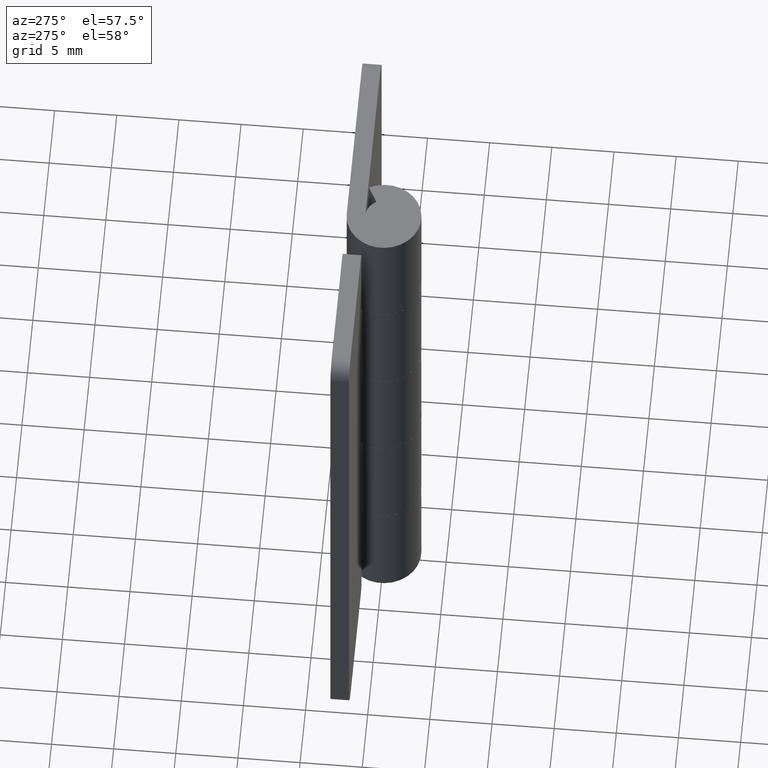
[diagram: clean part render]
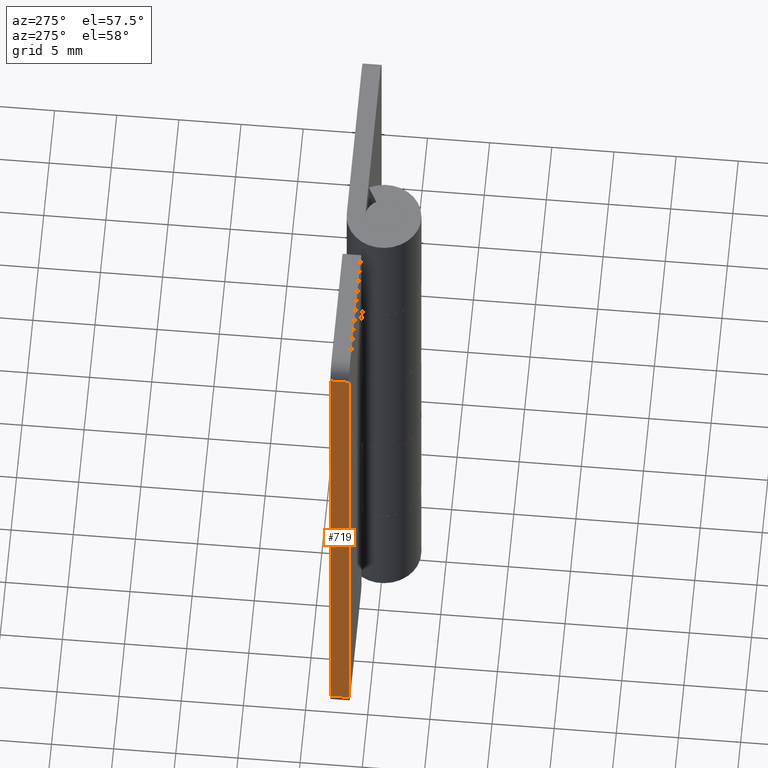
[diagram: same view with one face highlighted and labeled with its STEP entity id]
A machine part, auxiliary view. The second image highlights one B-rep face of the part: STEP entity #719.
In plain terms, the highlighted face is a freeform B-spline surface patch.
Its self-contained STEP definition (entity closure, byte-faithful):
#182=CARTESIAN_POINT('',(-15.0,1.500000000000000,48.500000000000000));
#183=VERTEX_POINT('',#182);
#204=CARTESIAN_POINT('',(-15.0,3.0,48.500000000000000));
#205=VERTEX_POINT('',#204);
#219=CARTESIAN_POINT('',(-15.0,1.500000000000000,48.500000000000000));
#220=CARTESIAN_POINT('',(-15.0,3.0,48.500000000000000));
#221=QUASI_UNIFORM_CURVE('',1,(#219,#220),.UNSPECIFIED.,.F.,.U.);
#222=EDGE_CURVE('',#183,#205,#221,.T.);
#241=CARTESIAN_POINT('',(-15.0,1.500000000000000,1.499999999999946));
#242=VERTEX_POINT('',#241);
#258=CARTESIAN_POINT('',(-15.0,3.0,1.499999999999946));
#259=VERTEX_POINT('',#258);
#260=CARTESIAN_POINT('',(-15.0,3.0,1.499999999999946));
#261=CARTESIAN_POINT('',(-15.0,1.500000000000000,1.499999999999946));
#262=QUASI_UNIFORM_CURVE('',1,(#260,#261),.UNSPECIFIED.,.F.,.U.);
#263=EDGE_CURVE('',#259,#242,#262,.T.);
#700=CARTESIAN_POINT('',(-15.0,1.425075002907291,-0.847649908904938));
#701=CARTESIAN_POINT('',(-15.0,1.425075002907291,50.847651169543127));
#702=CARTESIAN_POINT('',(-15.0,3.074925037325845,-0.847649908904938));
#703=CARTESIAN_POINT('',(-15.0,3.074925037325845,50.847651169543127));
#704=B_SPLINE_SURFACE_WITH_KNOTS('',1,1,((#700,#702),(#701,#703)),.UNSPECIFIED.,.F.,.F.,.U.,(2,2),(2,2),(0.0,51.695301078448068),(0.041708334948495,0.958291687403247),.UNSPECIFIED.);
#705=CARTESIAN_POINT('',(-15.0,3.0,48.500000000000000));
#706=CARTESIAN_POINT('',(-15.0,3.0,1.499999999999946));
#707=QUASI_UNIFORM_CURVE('',1,(#705,#706),.UNSPECIFIED.,.F.,.U.);
#708=EDGE_CURVE('',#205,#259,#707,.T.);
#709=ORIENTED_EDGE('',*,*,#708,.T.);
#710=ORIENTED_EDGE('',*,*,#263,.T.);
#711=CARTESIAN_POINT('',(-15.0,1.500000000000000,48.500000000000000));
#712=CARTESIAN_POINT('',(-15.0,1.500000000000000,1.499999999999946));
#713=QUASI_UNIFORM_CURVE('',1,(#711,#712),.UNSPECIFIED.,.F.,.U.);
#714=EDGE_CURVE('',#183,#242,#713,.T.);
#715=ORIENTED_EDGE('',*,*,#714,.F.);
#716=ORIENTED_EDGE('',*,*,#222,.T.);
#717=EDGE_LOOP('',(#709,#710,#715,#716));
#718=FACE_OUTER_BOUND('',#717,.T.);
#719=ADVANCED_FACE('',(#718),#704,.T.);